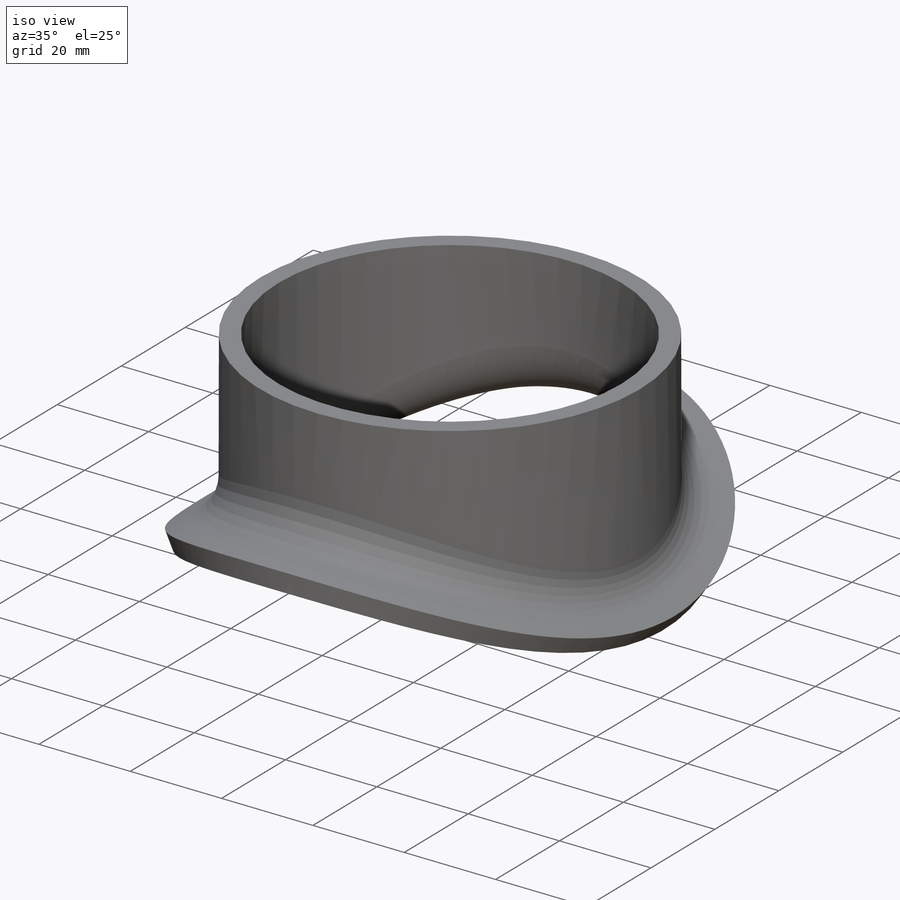
[diagram: iso view]
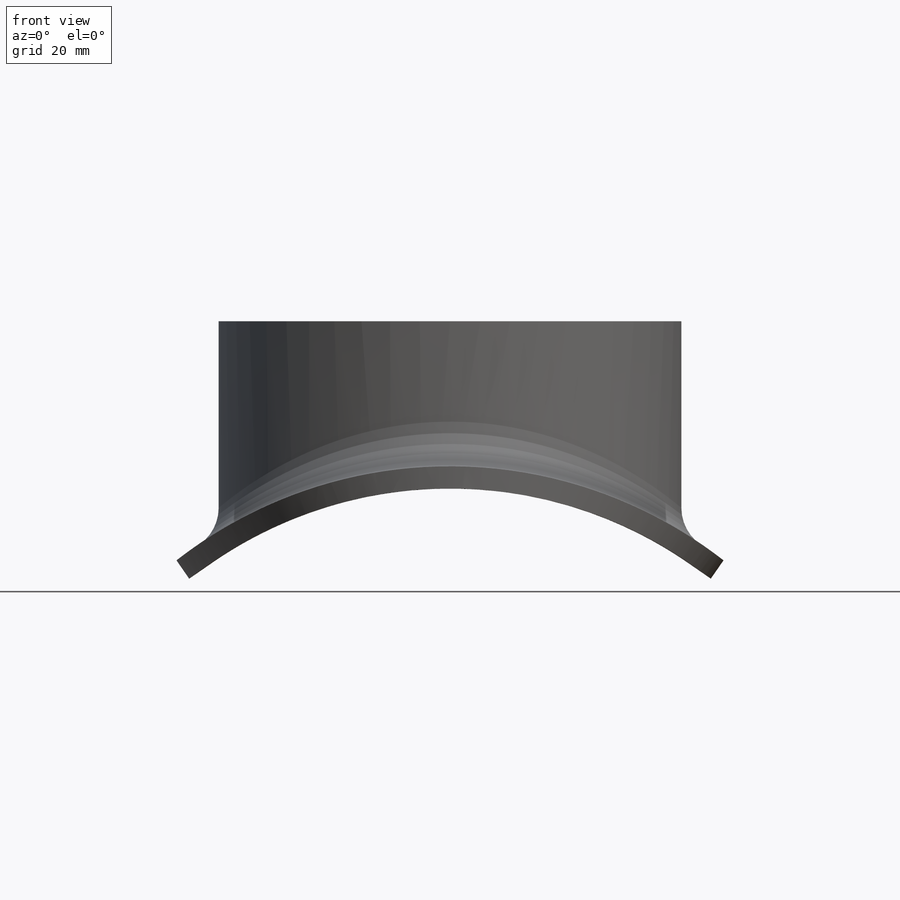
[diagram: front view]
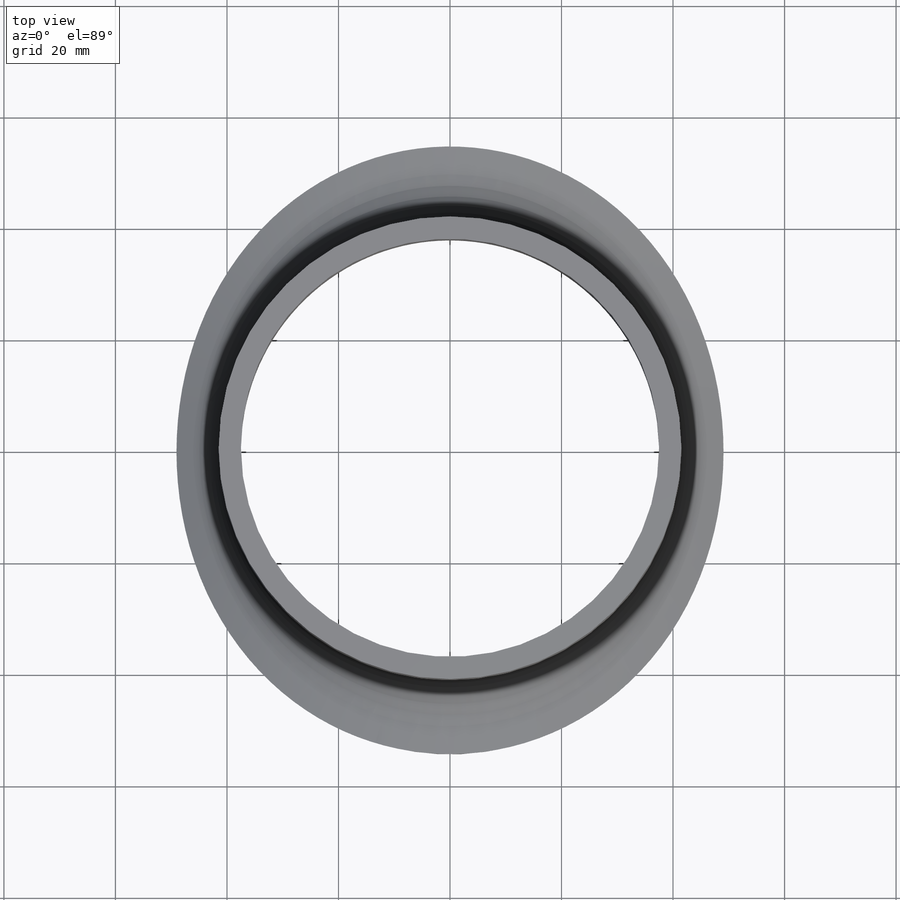
[diagram: top view]
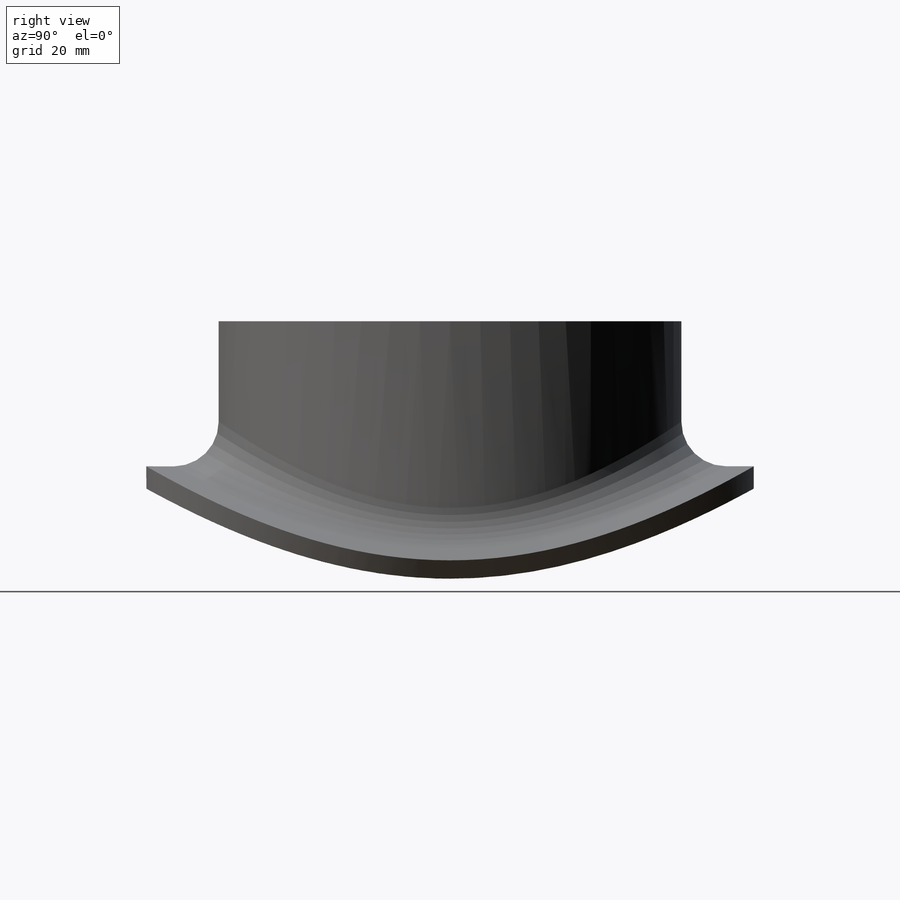
[diagram: right view]
SOLIDWORKS PART (.sldprt)
format: sldprt  version: not decoded by parser v0  size: 344,576 bytes
history: native  units: mm
features: plane x3, sketch x3, revolve x2, fillet x2, material x1, extrude x1, delete_body x1 + 2 further entries (+8 scaffold rows collapsed)
feature tree (23):
  scaffold x8  (default folders/planes/origin — collapsed)
  material  "Allgemein"
  plane  "Vorderansicht"
  plane  "Draufsicht"
  plane  "Seitenansicht"
  "Y-Achse"
  "Z-Achse"
  sketch  "Layout"  dims[c1.D1=150.0mm c1.D3=75.0mm c2.D1=~73.943606mm c2.D2=75.0mm c2.D3=30.0mm]
  sketch  "Skizze2"
  extrude  "Aufsatz-Linear austragen1"  Depth=150mm
  sketch  "Skizze3"  dims[D1=37.5mm]
  revolve  "Rotation1"  Angle=360deg
  fillet  "Verrundung1"  Radius=12mm
  revolve  "Oberfläche-Zusammenfügen2"  [1 undecoded]
  fillet  "Wanddicke auftragen3"  Radius=5mm
  delete_body  "Körper-Löschen1"
decode coverage: 6 of 9 modeling features carry decoded parameters; 2 rows unclassified (native names shown)
note: ~ marks probable driven/reference dimensions
note: 1 parameter value undecoded
note: suppression state not decoded; provenance and decode notes live in map.json
